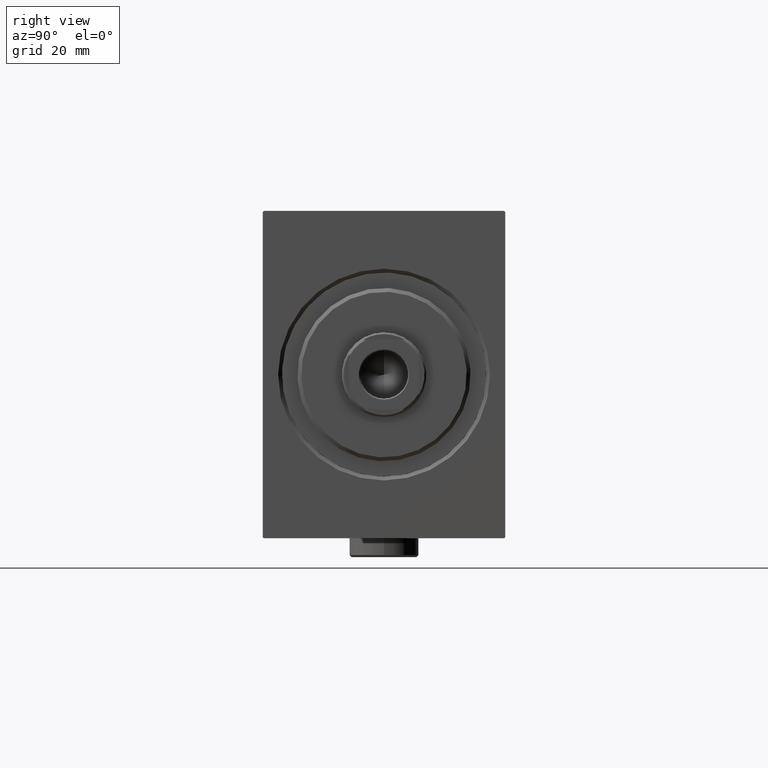
[diagram: clean part render]
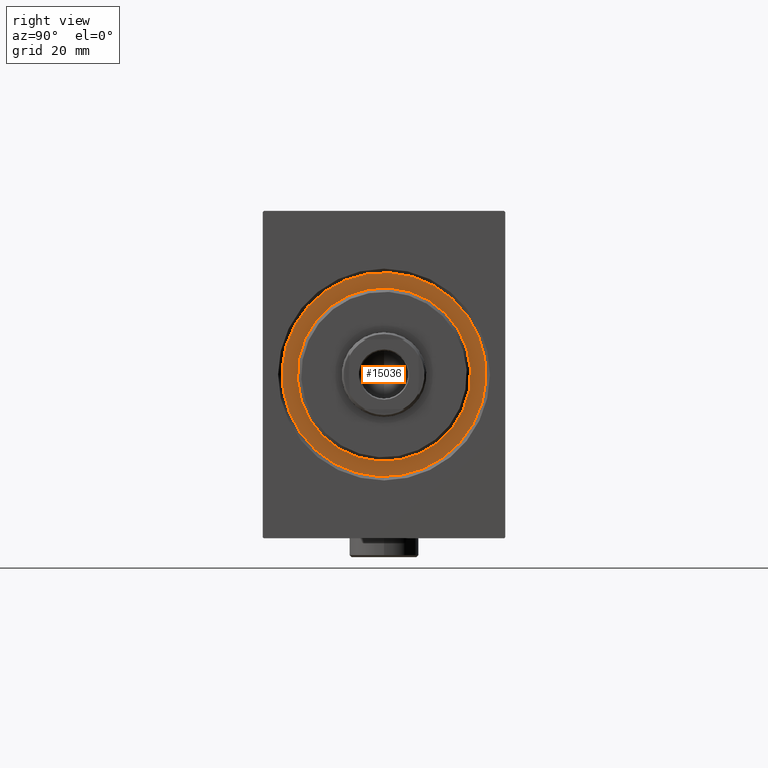
[diagram: same view with one face highlighted and labeled with its STEP entity id]
A machine part, right view. The second image highlights one B-rep face of the part: STEP entity #15036.
In plain terms, the highlighted planar face has unit normal (-1, 0, 0).
Its self-contained STEP definition (entity closure, byte-faithful):
#867 = CARTESIAN_POINT ( 'NONE',  ( 0.000000000000000000, 0.000000000000000000, 0.000000000000000000 ) ) ;
#1336 = EDGE_CURVE ( 'NONE', #4979, #14482, #15560, .T. ) ;
#1837 = CIRCLE ( 'NONE', #42013, 22.50000000000000355 ) ;
#2484 = AXIS2_PLACEMENT_3D ( 'NONE', #867, #38612, #7389 ) ;
#3384 = VERTEX_POINT ( 'NONE', #44100 ) ;
#4979 = VERTEX_POINT ( 'NONE', #18720 ) ;
#6268 = EDGE_CURVE ( 'NONE', #14482, #4979, #29184, .T. ) ;
#7389 = DIRECTION ( 'NONE',  ( 0.000000000000000000, 0.000000000000000000, -1.000000000000000000 ) ) ;
#7739 = CARTESIAN_POINT ( 'NONE',  ( 0.000000000000000000, 0.000000000000000000, 0.000000000000000000 ) ) ;
#8111 = DIRECTION ( 'NONE',  ( 0.000000000000000000, 0.000000000000000000, -1.000000000000000000 ) ) ;
#14150 = AXIS2_PLACEMENT_3D ( 'NONE', #24971, #24744, #38458 ) ;
#14314 = ORIENTED_EDGE ( 'NONE', *, *, #35207, .F. ) ;
#14482 = VERTEX_POINT ( 'NONE', #22684 ) ;
#14757 = ORIENTED_EDGE ( 'NONE', *, *, #1336, .F. ) ;
#15036 = ADVANCED_FACE ( 'NONE', ( #42096, #18066 ), #25448, .F. ) ;
#15560 = CIRCLE ( 'NONE', #33460, 26.50000000000000355 ) ;
#17262 = ORIENTED_EDGE ( 'NONE', *, *, #41904, .F. ) ;
#18066 = FACE_OUTER_BOUND ( 'NONE', #30007, .T. ) ;
#18452 = CARTESIAN_POINT ( 'NONE',  ( 0.000000000000000000, 0.000000000000000000, 22.50000000000000355 ) ) ;
#18720 = CARTESIAN_POINT ( 'NONE',  ( 0.000000000000000000, 0.000000000000000000, -26.50000000000000355 ) ) ;
#18970 = EDGE_LOOP ( 'NONE', ( #14314, #17262 ) ) ;
#22684 = CARTESIAN_POINT ( 'NONE',  ( 0.000000000000000000, 3.245314017740486554E-15, 26.50000000000000355 ) ) ;
#24744 = DIRECTION ( 'NONE',  ( -1.000000000000000000, 0.000000000000000000, 0.000000000000000000 ) ) ;
#24971 = CARTESIAN_POINT ( 'NONE',  ( 0.000000000000000000, 0.000000000000000000, 0.000000000000000000 ) ) ;
#25168 = CARTESIAN_POINT ( 'NONE',  ( 0.000000000000000000, 0.000000000000000000, 0.000000000000000000 ) ) ;
#25448 = PLANE ( 'NONE',  #25727 ) ;
#25727 = AXIS2_PLACEMENT_3D ( 'NONE', #7739, #28811, #38509 ) ;
#26862 = CIRCLE ( 'NONE', #2484, 22.50000000000000355 ) ;
#28811 = DIRECTION ( 'NONE',  ( -1.000000000000000000, 0.000000000000000000, 0.000000000000000000 ) ) ;
#29184 = CIRCLE ( 'NONE', #14150, 26.50000000000000355 ) ;
#30007 = EDGE_LOOP ( 'NONE', ( #14757, #43721 ) ) ;
#33460 = AXIS2_PLACEMENT_3D ( 'NONE', #39154, #41635, #42300 ) ;
#35207 = EDGE_CURVE ( 'NONE', #42708, #3384, #26862, .T. ) ;
#38458 = DIRECTION ( 'NONE',  ( 0.000000000000000000, 0.000000000000000000, 1.000000000000000000 ) ) ;
#38509 = DIRECTION ( 'NONE',  ( 0.000000000000000000, 0.000000000000000000, 1.000000000000000000 ) ) ;
#38612 = DIRECTION ( 'NONE',  ( 1.000000000000000000, -0.000000000000000000, 0.000000000000000000 ) ) ;
#38892 = DIRECTION ( 'NONE',  ( 1.000000000000000000, -0.000000000000000000, 0.000000000000000000 ) ) ;
#39154 = CARTESIAN_POINT ( 'NONE',  ( 0.000000000000000000, 0.000000000000000000, 0.000000000000000000 ) ) ;
#41635 = DIRECTION ( 'NONE',  ( -1.000000000000000000, 0.000000000000000000, 0.000000000000000000 ) ) ;
#41904 = EDGE_CURVE ( 'NONE', #3384, #42708, #1837, .T. ) ;
#42013 = AXIS2_PLACEMENT_3D ( 'NONE', #25168, #38892, #8111 ) ;
#42096 = FACE_BOUND ( 'NONE', #18970, .T. ) ;
#42300 = DIRECTION ( 'NONE',  ( 0.000000000000000000, 0.000000000000000000, 1.000000000000000000 ) ) ;
#42708 = VERTEX_POINT ( 'NONE', #18452 ) ;
#43721 = ORIENTED_EDGE ( 'NONE', *, *, #6268, .F. ) ;
#44100 = CARTESIAN_POINT ( 'NONE',  ( 0.000000000000000000, 2.755455298081545172E-15, -22.50000000000000355 ) ) ;